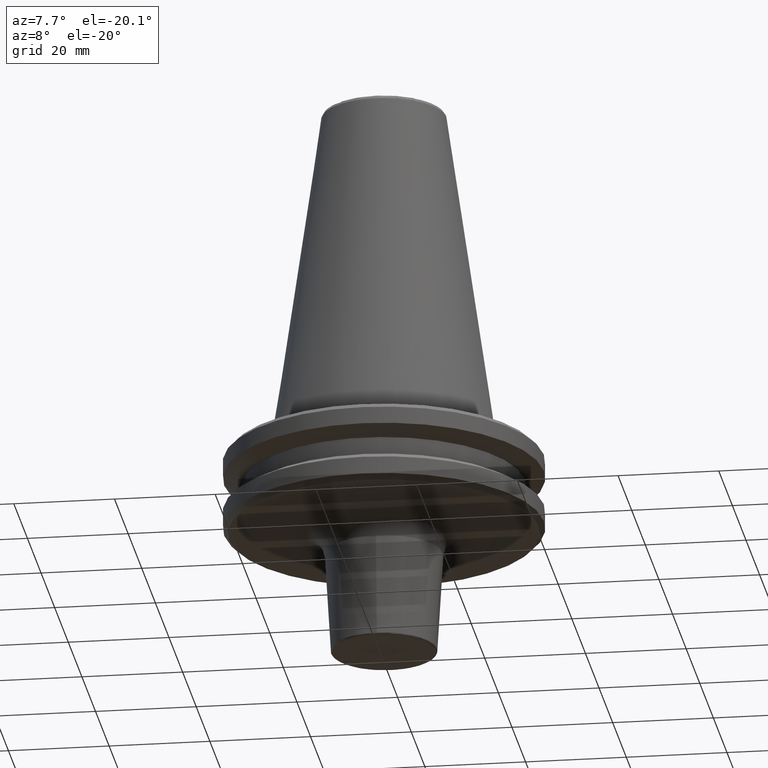
[diagram: clean part render]
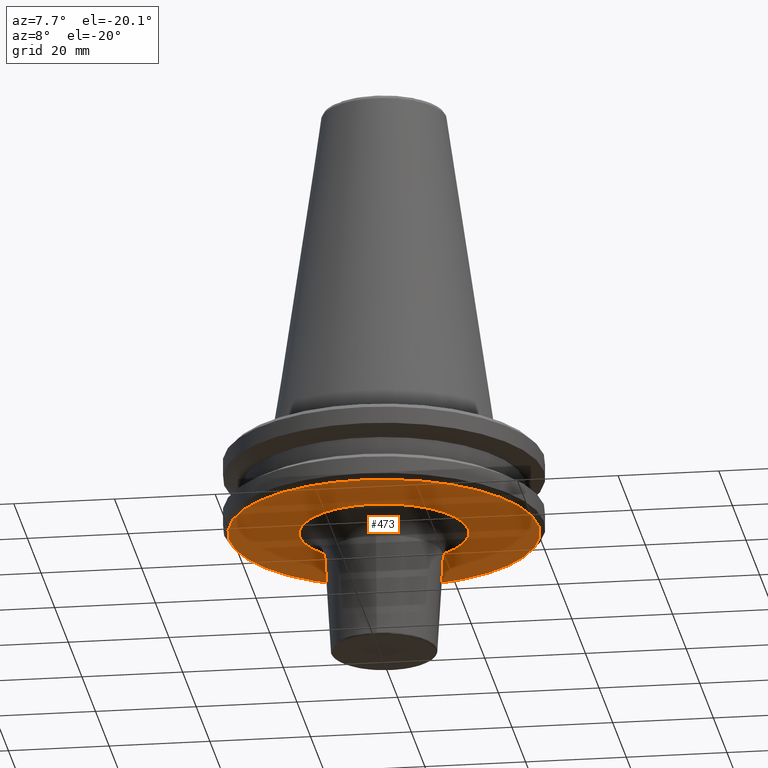
[diagram: same view with one face highlighted and labeled with its STEP entity id]
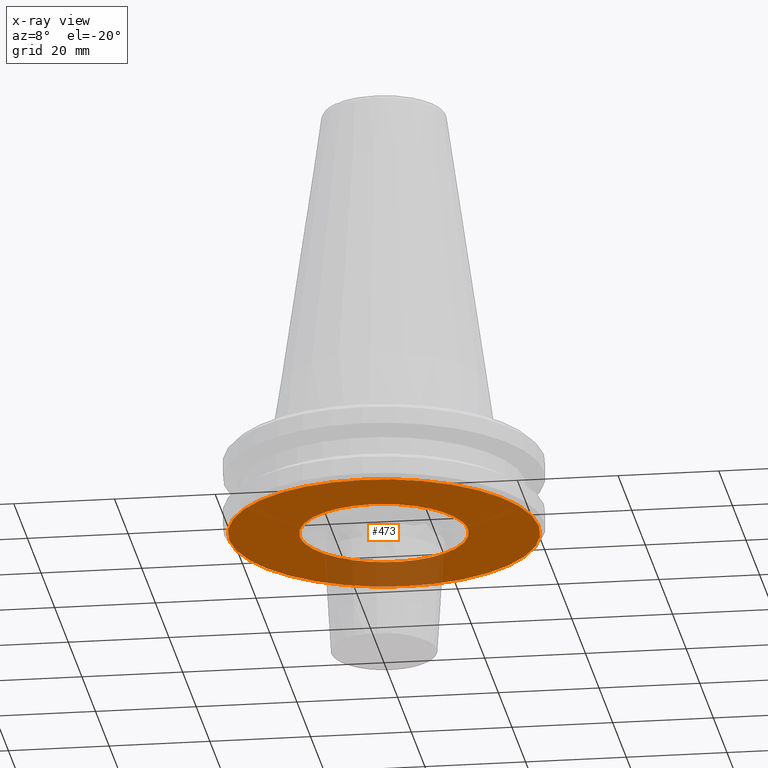
[diagram: x-ray of the same camera — body ghosted, the highlighted face saturated]
A machine part, auxiliary view. The second image highlights one B-rep face of the part: STEP entity #473.
The next image is the same camera in x-ray: the body ghosted, the highlighted face saturated — about 16% of this face is hidden behind the body in this view.
In plain terms, the highlighted planar face has unit normal (0, 0, -1).
Its self-contained STEP definition (entity closure, byte-faithful):
#3 = CARTESIAN_POINT ( 'NONE',  ( -3.273211614280688400, -16.38550312319334900, -19.10000000000000900 ) ) ;
#4 = CARTESIAN_POINT ( 'NONE',  ( 15.56066614214688200, 6.087461871300401000, -19.10000000000000500 ) ) ;
#5 = CARTESIAN_POINT ( 'NONE',  ( 16.33148562144493700, 3.573096658816918000, -19.10000000000000900 ) ) ;
#17 = CARTESIAN_POINT ( 'NONE',  ( -9.971919922135517900, -13.41271634861184300, -19.10000000000000500 ) ) ;
#22 = DIRECTION ( 'NONE',  ( 1.000000000000000000, 0.0000000000000000000, 0.0000000000000000000 ) ) ;
#27 = CARTESIAN_POINT ( 'NONE',  ( 2.977580239806947700, -16.44157557723119800, -19.10000000000000500 ) ) ;
#32 = CARTESIAN_POINT ( 'NONE',  ( 0.0000000000000000000, 0.0000000000000000000, -19.10000000000006200 ) ) ;
#42 = CARTESIAN_POINT ( 'NONE',  ( 5.929593815002739600, -15.62173324705691100, -19.10000000000000100 ) ) ;
#54 = CARTESIAN_POINT ( 'NONE',  ( -16.33148562144074100, -3.573096658829935100, -19.10000000000000100 ) ) ;
#58 = CARTESIAN_POINT ( 'NONE',  ( -16.45283330147772500, -2.914738401242650500, -19.10000000000000500 ) ) ;
#62 = CARTESIAN_POINT ( 'NONE',  ( 15.62173324705955600, 5.929593814993572700, -19.10000000000000100 ) ) ;
#83 = CARTESIAN_POINT ( 'NONE',  ( 7.443077310556489600, -14.97843021606886200, -19.10000000000000500 ) ) ;
#88 = CARTESIAN_POINT ( 'NONE',  ( -3.107017245632365500, -16.41761142749638900, -19.10000000000001200 ) ) ;
#111 = CARTESIAN_POINT ( 'NONE',  ( 4.361363818637564700, -16.14579171900091800, -19.10000000000000500 ) ) ;
#125 = CARTESIAN_POINT ( 'NONE',  ( 16.70899191454728300, 0.5109131243993810800, -19.10000000000000900 ) ) ;
#132 = CARTESIAN_POINT ( 'NONE',  ( 15.58521129710881000, 6.024348239625146200, -19.10000000000000100 ) ) ;
#133 = CARTESIAN_POINT ( 'NONE',  ( -15.56066614214635800, -6.087461871301999700, -19.10000000000000100 ) ) ;
#139 = CARTESIAN_POINT ( 'NONE',  ( -16.70899191454727600, 2.046261346512933100E-015, -19.10000000000000900 ) ) ;
#170 = EDGE_CURVE ( 'NONE', #537, #1223, #1152, .T. ) ;
#172 = CARTESIAN_POINT ( 'NONE',  ( -15.62173324705783800, -5.929593814998911600, -19.10000000000000500 ) ) ;
#177 = CARTESIAN_POINT ( 'NONE',  ( -16.57242241647687900, -2.159112028500115500, -19.10000000000000900 ) ) ;
#179 = CARTESIAN_POINT ( 'NONE',  ( -3.966775875733719500, -16.23535618899792300, -19.10000000000000500 ) ) ;
#181 = CARTESIAN_POINT ( 'NONE',  ( -6.216084941042275600, -15.50973603678827800, -19.10000000000000500 ) ) ;
#187 = ORIENTED_EDGE ( 'NONE', *, *, #259, .T. ) ;
#188 = B_SPLINE_CURVE_WITH_KNOTS ( 'NONE', 3,
 ( #774, #835, #327, #177, #285, #228, #58, #913, #485, #54, #292, #472, #197, #172, #265, #133, #916, #782, #426, #679, #768, #465, #801, #738, #711, #357, #279, #204, #17, #684, #538, #798, #784, #639, #941, #847, #433, #1506, #201, #181, #258, #862, #249, #179, #911, #3, #297, #88, #732, #1400, #702, #663, #554, #191, #898, #495, #367, #27, #571, #302, #111, #949, #436, #42, #418, #375, #373, #1356, #83, #351, #875, #1359, #458, #1213, #483, #382, #1204, #1241, #1277, #1275, #944, #1095, #1381, #1138, #1157, #904, #923, #1267, #1081, #942, #1336, #975, #1231, #1065, #1202, #1174, #1225, #1124, #1114, #1181, #1144, #1238 ),
 .UNSPECIFIED., .F., .F.,
 ( 4, 1, 1, 1, 1, 2, 2, 1, 1, 1, 1, 2, 2, 1, 1, 1, 2, 2, 2, 1, 1, 1, 2, 2, 1, 1, 1, 1, 2, 2, 1, 1, 1, 1, 2, 2, 2, 1, 1, 1, 1, 2, 2, 1, 1, 1, 1, 2, 2, 1, 1, 1, 2, 2, 2, 1, 1, 1, 2, 2, 1, 1, 1, 1, 2, 2, 1, 1, 1, 1, 2, 2, 4 ),
 ( 0.0000000000000000000, 0.03124999999999795300, 0.04687499999999691900, 0.05468749999999639900, 0.05859374999999614900, 0.06054687499999603100, 0.06249999999999592000, 0.09374999999999432400, 0.1093749999999935300, 0.1171874999999931000, 0.1210937499999929200, 0.1230468749999928800, 0.1249999999999928400, 0.1562499999999928400, 0.1718749999999928900, 0.1796874999999929200, 0.1835937499999928700, 0.1874999999999927800, 0.2499999999999920600, 0.2812499999999917300, 0.2968749999999915600, 0.3046874999999914000, 0.3085937499999913400, 0.3124999999999912300, 0.3437499999999905600, 0.3593749999999902300, 0.3671874999999900600, 0.3710937499999899500, 0.3730468749999899500, 0.3749999999999899000, 0.4062499999999899500, 0.4218749999999899500, 0.4296874999999899500, 0.4335937499999899000, 0.4355468749999899500, 0.4374999999999900100, 0.4999999999999909000, 0.5312499999999913400, 0.5468749999999914500, 0.5546874999999916700, 0.5585937499999916700, 0.5605468749999916700, 0.5624999999999916700, 0.5937499999999923400, 0.6093749999999925600, 0.6171874999999927800, 0.6210937499999928900, 0.6230468749999927800, 0.6249999999999927800, 0.6562499999999935600, 0.6718749999999940000, 0.6796874999999941200, 0.6835937499999942300, 0.6874999999999942300, 0.7499999999999961100, 0.7812499999999971100, 0.7968749999999976700, 0.8046874999999978900, 0.8085937499999980000, 0.8124999999999981100, 0.8437499999999986700, 0.8593749999999990000, 0.8671874999999991100, 0.8710937499999992200, 0.8730468749999992200, 0.8749999999999992200, 0.9062499999999995600, 0.9218749999999997800, 0.9296874999999997800, 0.9335937499999998900, 0.9355468749999998900, 0.9374999999999998900, 1.000000000000000000 ),
 .UNSPECIFIED. ) ;
#191 = CARTESIAN_POINT ( 'NONE',  ( 2.158997013189260200, -16.57244369657584600, -19.10000000000000500 ) ) ;
#197 = CARTESIAN_POINT ( 'NONE',  ( -15.70488065282972600, -5.707912317699030100, -19.10000000000000500 ) ) ;
#198 = CARTESIAN_POINT ( 'NONE',  ( 16.67412310652930100, 1.274150364136525300, -19.10000000000000900 ) ) ;
#201 = CARTESIAN_POINT ( 'NONE',  ( -6.281523939451907300, -15.48335104158634000, -19.10000000000000100 ) ) ;
#204 = CARTESIAN_POINT ( 'NONE',  ( -10.76761953157990300, -12.79983338334750300, -19.10000000000000500 ) ) ;
#228 = CARTESIAN_POINT ( 'NONE',  ( -16.46945046779879400, -2.820434997126953600, -19.10000000000000900 ) ) ;
#249 = CARTESIAN_POINT ( 'NONE',  ( -4.880297734936129400, -15.99658572075232300, -19.10000000000000900 ) ) ;
#258 = CARTESIAN_POINT ( 'NONE',  ( -6.181971338236482300, -15.52336150878758800, -19.10000000000000500 ) ) ;
#259 = EDGE_CURVE ( 'NONE', #1043, #622, #188, .T. ) ;
#265 = CARTESIAN_POINT ( 'NONE',  ( -15.58521129710780300, -6.024348239628270800, -19.09999999999999800 ) ) ;
#279 = CARTESIAN_POINT ( 'NONE',  ( -11.40735166676703300, -12.22275759030630500, -19.10000000000000500 ) ) ;
#285 = CARTESIAN_POINT ( 'NONE',  ( -16.50631696794279100, -2.600222415168852700, -19.09999999999999800 ) ) ;
#292 = CARTESIAN_POINT ( 'NONE',  ( -16.14579171900486200, -4.361363818621245300, -19.10000000000001600 ) ) ;
#297 = CARTESIAN_POINT ( 'NONE',  ( -3.173529372140885000, -16.40488619115063100, -19.10000000000000100 ) ) ;
#302 = CARTESIAN_POINT ( 'NONE',  ( 3.573096658839261000, -16.33148562143848900, -19.10000000000000500 ) ) ;
#320 = DIRECTION ( 'NONE',  ( -0.0000000000000000000, -0.0000000000000000000, 1.000000000000000000 ) ) ;
#327 = CARTESIAN_POINT ( 'NONE',  ( -16.67412310652929700, -1.274150364152470500, -19.10000000000000500 ) ) ;
#344 = CARTESIAN_POINT ( 'NONE',  ( 16.45283330147772800, 2.914738401240459400, -19.10000000000000500 ) ) ;
#345 = CARTESIAN_POINT ( 'NONE',  ( 14.13790343973266100, 8.905924171324393500, -19.10000000000000100 ) ) ;
#348 = CARTESIAN_POINT ( 'NONE',  ( 14.50404968136630900, 8.304593459410961400, -19.10000000000000900 ) ) ;
#351 = CARTESIAN_POINT ( 'NONE',  ( 8.304593459409087300, -14.50404968136377400, -19.10000000000000500 ) ) ;
#357 = CARTESIAN_POINT ( 'NONE',  ( -12.63042113516865900, -10.99960928809012200, -19.10000000000000900 ) ) ;
#367 = CARTESIAN_POINT ( 'NONE',  ( 2.914717349333073600, -16.45283719649584200, -19.10000000000000500 ) ) ;
#373 = CARTESIAN_POINT ( 'NONE',  ( 6.117688604166877700, -15.54881040975424100, -19.10000000000000100 ) ) ;
#375 = CARTESIAN_POINT ( 'NONE',  ( 6.087461871303152500, -15.56066614214608600, -19.10000000000000500 ) ) ;
#381 = CARTESIAN_POINT ( 'NONE',  ( 14.25024019506500400, 8.726806685066005500, -19.09999999999999800 ) ) ;
#382 = CARTESIAN_POINT ( 'NONE',  ( 10.99960928808820300, -12.63042113516870500, -19.10000000000000100 ) ) ;
#418 = CARTESIAN_POINT ( 'NONE',  ( 6.024348239630517900, -15.58521129710726400, -19.10000000000000900 ) ) ;
#426 = CARTESIAN_POINT ( 'NONE',  ( -14.97843021606744300, -7.443077310566718700, -19.10000000000000500 ) ) ;
#433 = CARTESIAN_POINT ( 'NONE',  ( -6.607123291484789700, -15.34836918350315900, -19.10000000000000900 ) ) ;
#436 = CARTESIAN_POINT ( 'NONE',  ( 5.707912317706178100, -15.70488065282799400, -19.10000000000000100 ) ) ;
#443 = CARTESIAN_POINT ( 'NONE',  ( 15.54881040975413100, 6.117688604166787100, -19.10000000000000900 ) ) ;
#458 = CARTESIAN_POINT ( 'NONE',  ( 9.024928931269119700, -14.06222087813214100, -19.10000000000000100 ) ) ;
#465 = CARTESIAN_POINT ( 'NONE',  ( -14.13790343973139900, -8.905924171326432800, -19.10000000000000500 ) ) ;
#467 = EDGE_LOOP ( 'NONE', ( #1040, #187 ) ) ;
#472 = CARTESIAN_POINT ( 'NONE',  ( -15.86289355459404000, -5.262197963773768800, -19.10000000000000900 ) ) ;
#473 = ADVANCED_FACE ( 'NONE', ( #1108, #610 ), #1425, .T. ) ;
#483 = CARTESIAN_POINT ( 'NONE',  ( 10.10853159733515700, -13.35436265844308100, -19.10000000000000500 ) ) ;
#485 = CARTESIAN_POINT ( 'NONE',  ( -16.43620118971364300, -3.007126828542805000, -19.10000000000000900 ) ) ;
#487 = CARTESIAN_POINT ( 'NONE',  ( 15.70488065283292800, 5.707912317689069100, -19.10000000000000900 ) ) ;
#492 = EDGE_LOOP ( 'NONE', ( #804, #1420 ) ) ;
#495 = CARTESIAN_POINT ( 'NONE',  ( 2.820399054842309500, -16.46945711782972300, -19.10000000000000100 ) ) ;
#529 = EDGE_CURVE ( 'NONE', #1223, #537, #773, .T. ) ;
#536 = CARTESIAN_POINT ( 'NONE',  ( 12.63042113517344600, 10.99960928808532900, -19.10000000000000500 ) ) ;
#537 = VERTEX_POINT ( 'NONE', #775 ) ;
#538 = CARTESIAN_POINT ( 'NONE',  ( -9.383296176287753800, -13.82569420036865400, -19.10000000000000100 ) ) ;
#554 = CARTESIAN_POINT ( 'NONE',  ( 1.273997010404657000, -16.67415147999460200, -19.09999999999999800 ) ) ;
#571 = CARTESIAN_POINT ( 'NONE',  ( 3.007126828542220100, -16.43620118971378800, -19.10000000000000100 ) ) ;
#596 = CARTESIAN_POINT ( 'NONE',  ( 16.43620118971337600, 3.007126828543615000, -19.10000000000000100 ) ) ;
#610 = FACE_OUTER_BOUND ( 'NONE', #492, .T. ) ;
#622 = VERTEX_POINT ( 'NONE', #734 ) ;
#639 = CARTESIAN_POINT ( 'NONE',  ( -8.670871838085728800, -14.29425141743120700, -19.10000000000001200 ) ) ;
#644 = CARTESIAN_POINT ( 'NONE',  ( 15.32806192371163000, 6.675338272899773900, -19.10000000000000100 ) ) ;
#651 = AXIS2_PLACEMENT_3D ( 'NONE', #1260, #1218, #866 ) ;
#652 = CARTESIAN_POINT ( 'NONE',  ( 15.86289355459953200, 5.262197963756685600, -19.10000000000000100 ) ) ;
#663 = CARTESIAN_POINT ( 'NONE',  ( 0.5108254936954539400, -16.70900812795602500, -19.10000000000000500 ) ) ;
#679 = CARTESIAN_POINT ( 'NONE',  ( -14.50404968136270500, -8.304593459416755900, -19.10000000000000500 ) ) ;
#684 = CARTESIAN_POINT ( 'NONE',  ( -9.561733754481810600, -13.70406479958975000, -19.10000000000000900 ) ) ;
#702 = CARTESIAN_POINT ( 'NONE',  ( -1.021650987390918500, -16.70895948772979600, -19.10000000000000500 ) ) ;
#706 = CARTESIAN_POINT ( 'NONE',  ( 16.44157358222191300, 2.977591022491218100, -19.09999999999999400 ) ) ;
#711 = CARTESIAN_POINT ( 'NONE',  ( -13.35436265842180800, -10.10853159735829700, -19.10000000000000900 ) ) ;
#732 = CARTESIAN_POINT ( 'NONE',  ( -3.071812577893335000, -16.42423099643890400, -19.10000000000000900 ) ) ;
#734 = CARTESIAN_POINT ( 'NONE',  ( 16.70899191454727600, 0.0000000000000000000, -19.10000000000000900 ) ) ;
#738 = CARTESIAN_POINT ( 'NONE',  ( -14.02478801515500200, -9.082997829093468300, -19.10000000000000100 ) ) ;
#768 = CARTESIAN_POINT ( 'NONE',  ( -14.25024019506290600, -8.726806685069393100, -19.10000000000000500 ) ) ;
#773 = CIRCLE ( 'NONE', #651, 30.75000000000049700 ) ;
#774 = CARTESIAN_POINT ( 'NONE',  ( -16.70899191454727600, 2.046261346512933100E-015, -19.10000000000000900 ) ) ;
#775 = CARTESIAN_POINT ( 'NONE',  ( -30.75000000000049700, 3.827021247335512800E-015, -19.10000000000006200 ) ) ;
#782 = CARTESIAN_POINT ( 'NONE',  ( -15.32806192370888500, -6.675338272904193500, -19.10000000000000100 ) ) ;
#784 = CARTESIAN_POINT ( 'NONE',  ( -9.202379783222259100, -13.94673870596901100, -19.09999999999999800 ) ) ;
#785 = CARTESIAN_POINT ( 'NONE',  ( 16.14579171901220200, 4.361363818598465300, -19.10000000000000100 ) ) ;
#796 = AXIS2_PLACEMENT_3D ( 'NONE', #1150, #1364, #1172 ) ;
#798 = CARTESIAN_POINT ( 'NONE',  ( -9.263750344971168000, -13.90606175176152200, -19.10000000000000100 ) ) ;
#801 = CARTESIAN_POINT ( 'NONE',  ( -14.06222087813193900, -9.024928931270535400, -19.10000000000000900 ) ) ;
#804 = ORIENTED_EDGE ( 'NONE', *, *, #529, .F. ) ;
#835 = CARTESIAN_POINT ( 'NONE',  ( -16.70899191454728000, -0.5109131244084913500, -19.10000000000000500 ) ) ;
#847 = CARTESIAN_POINT ( 'NONE',  ( -7.057990164154163400, -15.14986894320940700, -19.10000000000000500 ) ) ;
#862 = CARTESIAN_POINT ( 'NONE',  ( -5.646814527784786500, -15.73524433917605400, -19.10000000000001200 ) ) ;
#866 = DIRECTION ( 'NONE',  ( 1.000000000000000000, 0.0000000000000000000, 0.0000000000000000000 ) ) ;
#875 = CARTESIAN_POINT ( 'NONE',  ( 8.726806685064914900, -14.25024019506352800, -19.10000000000000900 ) ) ;
#898 = CARTESIAN_POINT ( 'NONE',  ( 2.600155322904186100, -16.50632938133387000, -19.10000000000000500 ) ) ;
#901 = CARTESIAN_POINT ( 'NONE',  ( 14.02478801515494700, 9.082997829093526900, -19.10000000000000500 ) ) ;
#904 = CARTESIAN_POINT ( 'NONE',  ( 15.14986894320871600, -7.057990164153359600, -19.09999999999999800 ) ) ;
#911 = CARTESIAN_POINT ( 'NONE',  ( -3.505201879246102200, -16.33820947055570400, -19.10000000000000900 ) ) ;
#913 = CARTESIAN_POINT ( 'NONE',  ( -16.44157358222192400, -2.977591022492342500, -19.10000000000000900 ) ) ;
#916 = CARTESIAN_POINT ( 'NONE',  ( -15.54881040975429900, -6.117688604166509100, -19.10000000000000900 ) ) ;
#923 = CARTESIAN_POINT ( 'NONE',  ( 15.34836918350276500, -6.607123291484316300, -19.10000000000000500 ) ) ;
#935 = CARTESIAN_POINT ( 'NONE',  ( 13.35436265842265700, 10.10853159735744500, -19.10000000000000500 ) ) ;
#941 = CARTESIAN_POINT ( 'NONE',  ( -7.942429230617609200, -14.71973580530950100, -19.10000000000000500 ) ) ;
#942 = CARTESIAN_POINT ( 'NONE',  ( 15.50973603678822100, -6.216084941042199200, -19.10000000000000900 ) ) ;
#944 = CARTESIAN_POINT ( 'NONE',  ( 13.82569420036909100, -9.383296176287741400, -19.10000000000000500 ) ) ;
#949 = CARTESIAN_POINT ( 'NONE',  ( 5.262197963786015000, -15.86289355459108000, -19.10000000000000500 ) ) ;
#964 = CARTESIAN_POINT ( 'NONE',  ( -16.70899191454727600, 2.046261346512933100E-015, -19.10000000000000900 ) ) ;
#966 = CARTESIAN_POINT ( 'NONE',  ( 16.70899191454727600, 0.0000000000000000000, -19.10000000000000900 ) ) ;
#969 = CARTESIAN_POINT ( 'NONE',  ( -16.70899191454728000, 1.022181789261935600, -19.10000000000000500 ) ) ;
#975 = CARTESIAN_POINT ( 'NONE',  ( 15.73524433917540600, -5.646814527788255800, -19.10000000000000900 ) ) ;
#994 = CARTESIAN_POINT ( 'NONE',  ( -16.61600842649934900, 2.035654846428921700, -19.10000000000000900 ) ) ;
#998 = CARTESIAN_POINT ( 'NONE',  ( -16.42422998240048000, 3.071818056659372700, -19.10000000000000500 ) ) ;
#1007 = CARTESIAN_POINT ( 'NONE',  ( -16.41761142749612600, 3.107017245632829500, -19.10000000000000100 ) ) ;
#1020 = CARTESIAN_POINT ( 'NONE',  ( 14.06222087813260500, 9.024928931269464300, -19.10000000000000900 ) ) ;
#1028 = AXIS2_PLACEMENT_3D ( 'NONE', #32, #320, #22 ) ;
#1031 = CARTESIAN_POINT ( 'NONE',  ( -16.40488619115013700, 3.173529372141791400, -19.10000000000000900 ) ) ;
#1034 = CARTESIAN_POINT ( 'NONE',  ( -16.38550312319250300, 3.273211614282239600, -19.10000000000000500 ) ) ;
#1037 = CARTESIAN_POINT ( 'NONE',  ( -16.33820947055414400, 3.505201879248992300, -19.10000000000000100 ) ) ;
#1040 = ORIENTED_EDGE ( 'NONE', *, *, #1409, .T. ) ;
#1041 = CARTESIAN_POINT ( 'NONE',  ( 14.97843021607224800, 7.443077310558981800, -19.10000000000000500 ) ) ;
#1043 = VERTEX_POINT ( 'NONE', #139 ) ;
#1045 = CARTESIAN_POINT ( 'NONE',  ( -16.23535618899525800, 3.966775875738679100, -19.10000000000000500 ) ) ;
#1051 = CARTESIAN_POINT ( 'NONE',  ( -15.99658572074876700, 4.880297734942744500, -19.10000000000000500 ) ) ;
#1062 = CARTESIAN_POINT ( 'NONE',  ( -15.73524433917402200, 5.646814527788558600, -19.10000000000000500 ) ) ;
#1065 = CARTESIAN_POINT ( 'NONE',  ( 16.23535618899707700, -3.966775875738274100, -19.10000000000000100 ) ) ;
#1075 = CARTESIAN_POINT ( 'NONE',  ( -15.52336150878772300, 6.181971338236239800, -19.10000000000000500 ) ) ;
#1081 = CARTESIAN_POINT ( 'NONE',  ( 15.48335104158621300, -6.281523939451759000, -19.10000000000000100 ) ) ;
#1085 = CARTESIAN_POINT ( 'NONE',  ( -15.50973603678870000, 6.216084941041397200, -19.10000000000000100 ) ) ;
#1092 = CARTESIAN_POINT ( 'NONE',  ( -15.48335104158715400, 6.281523939450195800, -19.10000000000000500 ) ) ;
#1095 = CARTESIAN_POINT ( 'NONE',  ( 13.90606175176176000, -9.263750344971166200, -19.10000000000000900 ) ) ;
#1097 = CARTESIAN_POINT ( 'NONE',  ( -15.44347772148737600, 6.379528020287766700, -19.10000000000000500 ) ) ;
#1108 = FACE_BOUND ( 'NONE', #467, .T. ) ;
#1114 = CARTESIAN_POINT ( 'NONE',  ( 16.42422998240047600, -3.071818056659796300, -19.10000000000000500 ) ) ;
#1115 = CARTESIAN_POINT ( 'NONE',  ( 16.46945046779878700, 2.820434997123213400, -19.10000000000000900 ) ) ;
#1124 = CARTESIAN_POINT ( 'NONE',  ( 16.41761142749630100, -3.107017245632790000, -19.10000000000000100 ) ) ;
#1127 = CARTESIAN_POINT ( 'NONE',  ( -15.34836918350574400, 6.607123291479351400, -19.10000000000000900 ) ) ;
#1138 = CARTESIAN_POINT ( 'NONE',  ( 14.29425141743069200, -8.670871838085108900, -19.10000000000000900 ) ) ;
#1140 = CARTESIAN_POINT ( 'NONE',  ( -15.14986894321383400, 7.057990164144843700, -19.10000000000000900 ) ) ;
#1144 = CARTESIAN_POINT ( 'NONE',  ( 16.70899191454728300, -1.022181789248412000, -19.10000000000000900 ) ) ;
#1150 = CARTESIAN_POINT ( 'NONE',  ( 0.0000000000000000000, 2.166680460328873200E-015, -19.10000000000000500 ) ) ;
#1152 = CIRCLE ( 'NONE', #1028, 30.75000000000049700 ) ;
#1157 = CARTESIAN_POINT ( 'NONE',  ( 14.71973580530859300, -7.942429230616533600, -19.10000000000000900 ) ) ;
#1162 = CARTESIAN_POINT ( 'NONE',  ( -14.71973580531538800, 7.942429230605181800, -19.10000000000000100 ) ) ;
#1163 = CARTESIAN_POINT ( 'NONE',  ( -14.29425141743458200, 8.670871838078625200, -19.10000000000000100 ) ) ;
#1172 = DIRECTION ( 'NONE',  ( -1.000000000000000000, 0.0000000000000000000, -0.0000000000000000000 ) ) ;
#1173 = CARTESIAN_POINT ( 'NONE',  ( -13.94673870596859200, 9.202379783223145500, -19.10000000000000500 ) ) ;
#1174 = CARTESIAN_POINT ( 'NONE',  ( 16.38550312319306800, -3.273211614282113500, -19.10000000000000500 ) ) ;
#1179 = CARTESIAN_POINT ( 'NONE',  ( -13.90606175176200800, 9.263750344970906900, -19.10000000000000500 ) ) ;
#1181 = CARTESIAN_POINT ( 'NONE',  ( 16.61600842649934900, -2.035654846415355200, -19.10000000000000500 ) ) ;
#1182 = CARTESIAN_POINT ( 'NONE',  ( -13.82569420036957200, 9.383296176287261800, -19.10000000000000500 ) ) ;
#1194 = CARTESIAN_POINT ( 'NONE',  ( -13.70406479959128300, 9.561733754480993500, -19.10000000000000900 ) ) ;
#1196 = CARTESIAN_POINT ( 'NONE',  ( -13.41271634861447000, 9.971919922134114600, -19.10000000000000500 ) ) ;
#1200 = CARTESIAN_POINT ( 'NONE',  ( -12.79983338335100600, 10.76761953157802800, -19.10000000000000500 ) ) ;
#1202 = CARTESIAN_POINT ( 'NONE',  ( 16.33820947055519900, -3.505201879248752900, -19.10000000000000100 ) ) ;
#1204 = CARTESIAN_POINT ( 'NONE',  ( 12.22275759030725300, -11.40735166676702100, -19.10000000000000100 ) ) ;
#1211 = CARTESIAN_POINT ( 'NONE',  ( -12.22275759030831000, 11.40735166676596900, -19.10000000000000900 ) ) ;
#1213 = CARTESIAN_POINT ( 'NONE',  ( 9.082997829094914300, -14.02478801515367100, -19.10000000000000500 ) ) ;
#1217 = CARTESIAN_POINT ( 'NONE',  ( -10.99960928808611800, 12.63042113517079600, -19.10000000000000100 ) ) ;
#1218 = DIRECTION ( 'NONE',  ( -0.0000000000000000000, -0.0000000000000000000, 1.000000000000000000 ) ) ;
#1220 = CARTESIAN_POINT ( 'NONE',  ( -10.10853159735479400, 13.35436265842344600, -19.10000000000000500 ) ) ;
#1222 = CARTESIAN_POINT ( 'NONE',  ( -9.082997829093686800, 14.02478801515490400, -19.10000000000000900 ) ) ;
#1223 = VERTEX_POINT ( 'NONE', #1539 ) ;
#1225 = CARTESIAN_POINT ( 'NONE',  ( 16.40488619115047400, -3.173529372141715500, -19.10000000000000500 ) ) ;
#1229 = CARTESIAN_POINT ( 'NONE',  ( -9.024928931269943900, 14.06222087813241500, -19.10000000000000500 ) ) ;
#1231 = CARTESIAN_POINT ( 'NONE',  ( 15.99658572075119500, -4.880297734942206300, -19.10000000000000900 ) ) ;
#1238 = CARTESIAN_POINT ( 'NONE',  ( 16.70899191454727600, 0.0000000000000000000, -19.10000000000000900 ) ) ;
#1241 = CARTESIAN_POINT ( 'NONE',  ( 12.79983338334917600, -10.76761953157986300, -19.10000000000000500 ) ) ;
#1247 = CARTESIAN_POINT ( 'NONE',  ( -8.905924171325299500, 14.13790343973228200, -19.10000000000000100 ) ) ;
#1251 = CARTESIAN_POINT ( 'NONE',  ( -8.726806685067515400, 14.25024019506437300, -19.10000000000000900 ) ) ;
#1260 = CARTESIAN_POINT ( 'NONE',  ( 0.0000000000000000000, 0.0000000000000000000, -19.10000000000006200 ) ) ;
#1263 = CARTESIAN_POINT ( 'NONE',  ( -8.304593459413538900, 14.50404968136522800, -19.10000000000000500 ) ) ;
#1266 = CARTESIAN_POINT ( 'NONE',  ( -7.443077310562433300, 14.97843021607080300, -19.10000000000000500 ) ) ;
#1267 = CARTESIAN_POINT ( 'NONE',  ( 15.44347772148577200, -6.379528020290430300, -19.10000000000000500 ) ) ;
#1270 = CARTESIAN_POINT ( 'NONE',  ( -6.675338272901745600, 15.32806192371080700, -19.10000000000000900 ) ) ;
#1275 = CARTESIAN_POINT ( 'NONE',  ( 13.70406479959048000, -9.561733754481792900, -19.10000000000000500 ) ) ;
#1276 = CARTESIAN_POINT ( 'NONE',  ( -6.117688604166660900, 15.54881040975418000, -19.10000000000000500 ) ) ;
#1277 = CARTESIAN_POINT ( 'NONE',  ( 13.41271634861309900, -9.971919922135493100, -19.10000000000000900 ) ) ;
#1278 = CARTESIAN_POINT ( 'NONE',  ( -6.087461871300481800, 15.56066614214685700, -19.10000000000000900 ) ) ;
#1283 = CARTESIAN_POINT ( 'NONE',  ( -6.024348239625304300, 15.58521129710876500, -19.10000000000000500 ) ) ;
#1294 = CARTESIAN_POINT ( 'NONE',  ( -5.929593814993849000, 15.62173324705947400, -19.10000000000000900 ) ) ;
#1296 = CARTESIAN_POINT ( 'NONE',  ( -5.707912317689572700, 15.70488065283278300, -19.10000000000001200 ) ) ;
#1298 = CARTESIAN_POINT ( 'NONE',  ( -5.262197963757556900, 15.86289355459927300, -19.10000000000000900 ) ) ;
#1299 = CARTESIAN_POINT ( 'NONE',  ( 16.57242241647687200, 2.159112028488154000, -19.10000000000000100 ) ) ;
#1300 = CARTESIAN_POINT ( 'NONE',  ( -4.361363818599620900, 16.14579171901183200, -19.10000000000000900 ) ) ;
#1303 = CARTESIAN_POINT ( 'NONE',  ( -3.573096658817576500, 16.33148562144472700, -19.10000000000000100 ) ) ;
#1310 = CARTESIAN_POINT ( 'NONE',  ( -3.007126828543572800, 16.43620118971340500, -19.10000000000000900 ) ) ;
#1331 = CARTESIAN_POINT ( 'NONE',  ( -2.977580239806663500, 16.44157557723099900, -19.10000000000000500 ) ) ;
#1332 = CARTESIAN_POINT ( 'NONE',  ( 16.50631696794280100, 2.600222415161877800, -19.10000000000001200 ) ) ;
#1335 = CARTESIAN_POINT ( 'NONE',  ( -2.914717349332521600, 16.45283719649544100, -19.10000000000000100 ) ) ;
#1336 = CARTESIAN_POINT ( 'NONE',  ( 15.52336150878763200, -6.181971338236262900, -19.10000000000000500 ) ) ;
#1338 = CARTESIAN_POINT ( 'NONE',  ( -2.820399054841368900, 16.46945711782902700, -19.10000000000000500 ) ) ;
#1340 = CARTESIAN_POINT ( 'NONE',  ( -2.600155322902434100, 16.50632938133259800, -19.10000000000000900 ) ) ;
#1343 = CARTESIAN_POINT ( 'NONE',  ( -2.158997013186251500, 16.57244369657366100, -19.10000000000000500 ) ) ;
#1348 = CARTESIAN_POINT ( 'NONE',  ( -1.273997010400660800, 16.67415147999167500, -19.10000000000000900 ) ) ;
#1353 = CARTESIAN_POINT ( 'NONE',  ( -0.5108254936931753100, 16.70900812795435500, -19.10000000000001600 ) ) ;
#1356 = CARTESIAN_POINT ( 'NONE',  ( 6.675338272898357200, -15.32806192370968800, -19.10000000000000500 ) ) ;
#1359 = CARTESIAN_POINT ( 'NONE',  ( 8.905924171323739800, -14.13790343973177600, -19.10000000000000500 ) ) ;
#1363 = CARTESIAN_POINT ( 'NONE',  ( 1.021650987386351300, 16.70895948773313900, -19.10000000000000500 ) ) ;
#1364 = DIRECTION ( 'NONE',  ( 0.0000000000000000000, 0.0000000000000000000, -1.000000000000000000 ) ) ;
#1365 = B_SPLINE_CURVE_WITH_KNOTS ( 'NONE', 3,
 ( #966, #125, #198, #1299, #1332, #1115, #344, #706, #596, #5, #785, #652, #487, #62, #132, #4, #443, #644, #1041, #348, #381, #345, #1020, #901, #935, #536, #1522, #1512, #1511, #1510, #1495, #1494, #1491, #1487, #1483, #1478, #1476, #1474, #1468, #1462, #1455, #1454, #1453, #1445, #1416, #1414, #1406, #1399, #1393, #1377, #1363, #1353, #1348, #1343, #1340, #1338, #1335, #1331, #1310, #1303, #1300, #1298, #1296, #1294, #1283, #1278, #1276, #1270, #1266, #1263, #1251, #1247, #1229, #1222, #1220, #1217, #1211, #1200, #1196, #1194, #1182, #1179, #1173, #1163, #1162, #1140, #1127, #1097, #1092, #1085, #1075, #1062, #1051, #1045, #1037, #1034, #1031, #1007, #998, #994, #969, #964 ),
 .UNSPECIFIED., .F., .F.,
 ( 4, 1, 1, 1, 1, 2, 2, 1, 1, 1, 1, 2, 2, 1, 1, 1, 2, 2, 2, 1, 1, 1, 2, 2, 1, 1, 1, 1, 2, 2, 1, 1, 1, 1, 2, 2, 2, 1, 1, 1, 1, 2, 2, 1, 1, 1, 1, 2, 2, 1, 1, 1, 2, 2, 2, 1, 1, 1, 2, 2, 1, 1, 1, 1, 2, 2, 1, 1, 1, 1, 2, 2, 4 ),
 ( 0.0000000000000000000, 0.03124999999999969500, 0.04687499999999953500, 0.05468749999999942400, 0.05859374999999937500, 0.06054687499999936200, 0.06249999999999934800, 0.09374999999999930600, 0.1093749999999992500, 0.1171874999999992400, 0.1210937499999992800, 0.1230468749999992900, 0.1249999999999993100, 0.1562499999999993300, 0.1718749999999993300, 0.1796874999999993900, 0.1835937499999994400, 0.1874999999999995300, 0.2500000000000003300, 0.2812500000000007200, 0.2968750000000009400, 0.3046875000000010000, 0.3085937500000011100, 0.3125000000000011700, 0.3437500000000015000, 0.3593750000000017200, 0.3671875000000017800, 0.3710937500000018900, 0.3730468750000018300, 0.3750000000000018300, 0.4062500000000023300, 0.4218750000000026600, 0.4296875000000027800, 0.4335937500000028900, 0.4355468750000028900, 0.4375000000000029400, 0.5000000000000041100, 0.5312500000000046600, 0.5468750000000050000, 0.5546875000000051100, 0.5585937500000052200, 0.5605468750000052200, 0.5625000000000051100, 0.5937500000000055500, 0.6093750000000056600, 0.6171875000000057700, 0.6210937500000056600, 0.6230468750000056600, 0.6250000000000056600, 0.6562500000000045500, 0.6718750000000041100, 0.6796875000000037700, 0.6835937500000036600, 0.6875000000000034400, 0.7500000000000026600, 0.7812500000000022200, 0.7968750000000021100, 0.8046875000000020000, 0.8085937500000020000, 0.8125000000000018900, 0.8437500000000018900, 0.8593750000000017800, 0.8671875000000018900, 0.8710937500000018900, 0.8730468750000018900, 0.8750000000000018900, 0.9062500000000015500, 0.9218750000000014400, 0.9296875000000013300, 0.9335937500000013300, 0.9355468750000013300, 0.9375000000000012200, 1.000000000000000000 ),
 .UNSPECIFIED. ) ;
#1377 = CARTESIAN_POINT ( 'NONE',  ( 2.035830166956604300, 16.61597597727314800, -19.10000000000001200 ) ) ;
#1381 = CARTESIAN_POINT ( 'NONE',  ( 13.94673870596907700, -9.202379783222339100, -19.10000000000000500 ) ) ;
#1393 = CARTESIAN_POINT ( 'NONE',  ( 3.071812577892879800, 16.42423099643880500, -19.10000000000000900 ) ) ;
#1399 = CARTESIAN_POINT ( 'NONE',  ( 3.107017245635504300, 16.41761142749541600, -19.10000000000000500 ) ) ;
#1400 = CARTESIAN_POINT ( 'NONE',  ( -2.035830166942192800, -16.61597597726980200, -19.10000000000000500 ) ) ;
#1406 = CARTESIAN_POINT ( 'NONE',  ( 3.173529372147016600, 16.40488619114873000, -19.10000000000000900 ) ) ;
#1409 = EDGE_CURVE ( 'NONE', #622, #1043, #1365, .T. ) ;
#1414 = CARTESIAN_POINT ( 'NONE',  ( 3.273211614291165800, 16.38550312319009100, -19.10000000000000500 ) ) ;
#1416 = CARTESIAN_POINT ( 'NONE',  ( 3.505201879265659800, 16.33820947054963600, -19.10000000000000500 ) ) ;
#1420 = ORIENTED_EDGE ( 'NONE', *, *, #170, .F. ) ;
#1425 = PLANE ( 'NONE',  #796 ) ;
#1445 = CARTESIAN_POINT ( 'NONE',  ( 3.966775875767254400, 16.23535618898753100, -19.10000000000000900 ) ) ;
#1453 = CARTESIAN_POINT ( 'NONE',  ( 4.880297734980840300, 15.99658572073846600, -19.10000000000000500 ) ) ;
#1454 = CARTESIAN_POINT ( 'NONE',  ( 5.646814527810327000, 15.73524433916813300, -19.10000000000000900 ) ) ;
#1455 = CARTESIAN_POINT ( 'NONE',  ( 6.181971338234877300, 15.52336150878809700, -19.10000000000000500 ) ) ;
#1462 = CARTESIAN_POINT ( 'NONE',  ( 6.216084941042970200, 15.50973603678773000, -19.10000000000000100 ) ) ;
#1468 = CARTESIAN_POINT ( 'NONE',  ( 6.281523939453274300, 15.48335104158526000, -19.10000000000000500 ) ) ;
#1474 = CARTESIAN_POINT ( 'NONE',  ( 6.379528020293022900, 15.44347772148413400, -19.10000000000000100 ) ) ;
#1476 = CARTESIAN_POINT ( 'NONE',  ( 6.607123291489158700, 15.34836918349968300, -19.10000000000000500 ) ) ;
#1478 = CARTESIAN_POINT ( 'NONE',  ( 7.057990164161664000, 15.14986894320343500, -19.10000000000000500 ) ) ;
#1483 = CARTESIAN_POINT ( 'NONE',  ( 7.942429230627608300, 14.71973580530153700, -19.10000000000000500 ) ) ;
#1487 = CARTESIAN_POINT ( 'NONE',  ( 8.670871838091446900, 14.29425141742665400, -19.10000000000000100 ) ) ;
#1491 = CARTESIAN_POINT ( 'NONE',  ( 9.202379783221548600, 13.94673870596957600, -19.10000000000000500 ) ) ;
#1494 = CARTESIAN_POINT ( 'NONE',  ( 9.263750344970587100, 13.90606175176210300, -19.10000000000000500 ) ) ;
#1495 = CARTESIAN_POINT ( 'NONE',  ( 9.383296176286650700, 13.82569420036975500, -19.10000000000000100 ) ) ;
#1506 = CARTESIAN_POINT ( 'NONE',  ( -6.379528020290683400, -15.44347772148599400, -19.10000000000000900 ) ) ;
#1510 = CARTESIAN_POINT ( 'NONE',  ( 9.561733754479973900, 13.70406479959158300, -19.10000000000000500 ) ) ;
#1511 = CARTESIAN_POINT ( 'NONE',  ( 9.971919922132380900, 13.41271634861498900, -19.10000000000000900 ) ) ;
#1512 = CARTESIAN_POINT ( 'NONE',  ( 10.76761953157571000, 12.79983338335169700, -19.10000000000000500 ) ) ;
#1522 = CARTESIAN_POINT ( 'NONE',  ( 11.40735166676465300, 12.22275759030870300, -19.10000000000000900 ) ) ;
#1539 = CARTESIAN_POINT ( 'NONE',  ( 30.75000000000049700, 0.0000000000000000000, -19.10000000000006200 ) ) ;